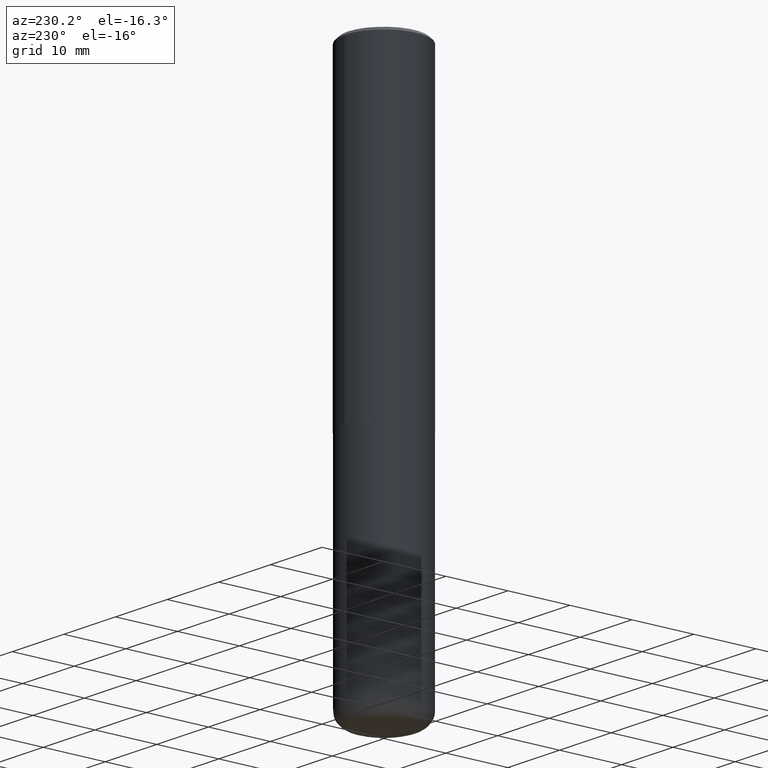
[diagram: clean part render]
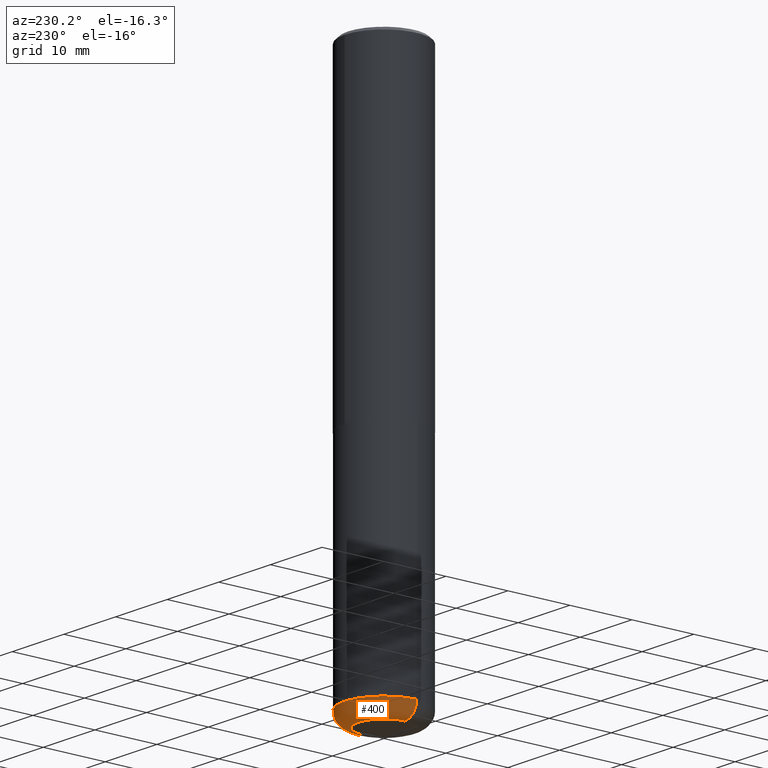
[diagram: same view with one face highlighted and labeled with its STEP entity id]
A machine part, auxiliary view. The second image highlights one B-rep face of the part: STEP entity #400.
In plain terms, the highlighted toroidal blend (fillet) surface has major radius 4.064 mm and minor (blend) radius 2.286 mm.
Its self-contained STEP definition (entity closure, byte-faithful):
#16 = VERTEX_POINT ( 'NONE', #249 ) ;
#19 = CARTESIAN_POINT ( 'NONE',  ( -0.1600000000000000033, -1.076908298823896635E-14, -3.410000000000000142 ) ) ;
#39 = EDGE_CURVE ( 'NONE', #16, #207, #263, .T. ) ;
#56 = CARTESIAN_POINT ( 'NONE',  ( 0.1600000000000000033, -1.333745871438080791E-14, -3.499999999999999112 ) ) ;
#67 = CARTESIAN_POINT ( 'NONE',  ( 0.2499999999999998612, -1.365169203487669276E-14, -3.410000000000000142 ) ) ;
#78 = ORIENTED_EDGE ( 'NONE', *, *, #115, .T. ) ;
#87 = CIRCLE ( 'NONE', #189, 0.2500000000000000555 ) ;
#92 = DIRECTION ( 'NONE',  ( -2.445468806185136597E-29, 3.491481338843145583E-15, 1.000000000000000000 ) ) ;
#99 = DIRECTION ( 'NONE',  ( 1.000000000000000000, -6.982962677686273810E-15, 0.000000000000000000 ) ) ;
#101 = VERTEX_POINT ( 'NONE', #56 ) ;
#103 = CARTESIAN_POINT ( 'NONE',  ( 0.1600000000000000033, -1.302322539388492780E-14, -3.410000000000000142 ) ) ;
#109 = DIRECTION ( 'NONE',  ( -2.445468806185136597E-29, 3.491481338843145583E-15, 1.000000000000000000 ) ) ;
#115 = EDGE_CURVE ( 'NONE', #101, #16, #167, .T. ) ;
#126 = AXIS2_PLACEMENT_3D ( 'NONE', #403, #109, #365 ) ;
#132 = CIRCLE ( 'NONE', #168, 0.08999999999999964972 ) ;
#135 = EDGE_CURVE ( 'NONE', #184, #207, #87, .T. ) ;
#140 = TOROIDAL_SURFACE ( 'NONE', #126, 0.1600000000000000033, 0.08999999999999967748 ) ;
#146 = ORIENTED_EDGE ( 'NONE', *, *, #379, .F. ) ;
#156 = CARTESIAN_POINT ( 'NONE',  ( 8.559140821647976968E-29, -1.222018468595100619E-14, -3.499999999999999112 ) ) ;
#159 = DIRECTION ( 'NONE',  ( -1.000000000000000000, 7.105427357600996337E-15, 0.000000000000000000 ) ) ;
#167 = CIRCLE ( 'NONE', #270, 0.1600000000000000033 ) ;
#168 = AXIS2_PLACEMENT_3D ( 'NONE', #103, #237, #99 ) ;
#174 = ORIENTED_EDGE ( 'NONE', *, *, #135, .F. ) ;
#184 = VERTEX_POINT ( 'NONE', #67 ) ;
#185 = CARTESIAN_POINT ( 'NONE',  ( 8.339048629091315302E-29, -1.190595136545512608E-14, -3.410000000000000142 ) ) ;
#188 = DIRECTION ( 'NONE',  ( 1.000000000000000000, -6.982962677686269077E-15, 0.000000000000000000 ) ) ;
#189 = AXIS2_PLACEMENT_3D ( 'NONE', #185, #339, #188 ) ;
#207 = VERTEX_POINT ( 'NONE', #349 ) ;
#223 = DIRECTION ( 'NONE',  ( 1.000000000000000000, -6.982962677686259611E-15, 0.000000000000000000 ) ) ;
#227 = AXIS2_PLACEMENT_3D ( 'NONE', #19, #251, #159 ) ;
#237 = DIRECTION ( 'NONE',  ( -6.982962677686266711E-15, -1.000000000000000000, 3.491481338843145583E-15 ) ) ;
#249 = CARTESIAN_POINT ( 'NONE',  ( -0.1600000000000000033, -1.060645541739486182E-14, -3.499999999999999112 ) ) ;
#251 = DIRECTION ( 'NONE',  ( 7.105427357601001859E-15, 1.000000000000000000, -3.491481338843145583E-15 ) ) ;
#258 = FACE_OUTER_BOUND ( 'NONE', #315, .T. ) ;
#263 = CIRCLE ( 'NONE', #227, 0.08999999999999964972 ) ;
#270 = AXIS2_PLACEMENT_3D ( 'NONE', #156, #92, #223 ) ;
#315 = EDGE_LOOP ( 'NONE', ( #78, #399, #174, #146 ) ) ;
#339 = DIRECTION ( 'NONE',  ( -2.445468806185136597E-29, 3.491481338843145583E-15, 1.000000000000000000 ) ) ;
#349 = CARTESIAN_POINT ( 'NONE',  ( -0.2499999999999998612, -1.012959452605487719E-14, -3.410000000000000142 ) ) ;
#365 = DIRECTION ( 'NONE',  ( 1.000000000000000000, -6.982962677686265133E-15, 4.883557194083112340E-29 ) ) ;
#379 = EDGE_CURVE ( 'NONE', #101, #184, #132, .T. ) ;
#399 = ORIENTED_EDGE ( 'NONE', *, *, #39, .T. ) ;
#400 = ADVANCED_FACE ( 'NONE', ( #258 ), #140, .T. ) ;
#403 = CARTESIAN_POINT ( 'NONE',  ( 8.339048629091315302E-29, -1.190595136545512608E-14, -3.410000000000000142 ) ) ;